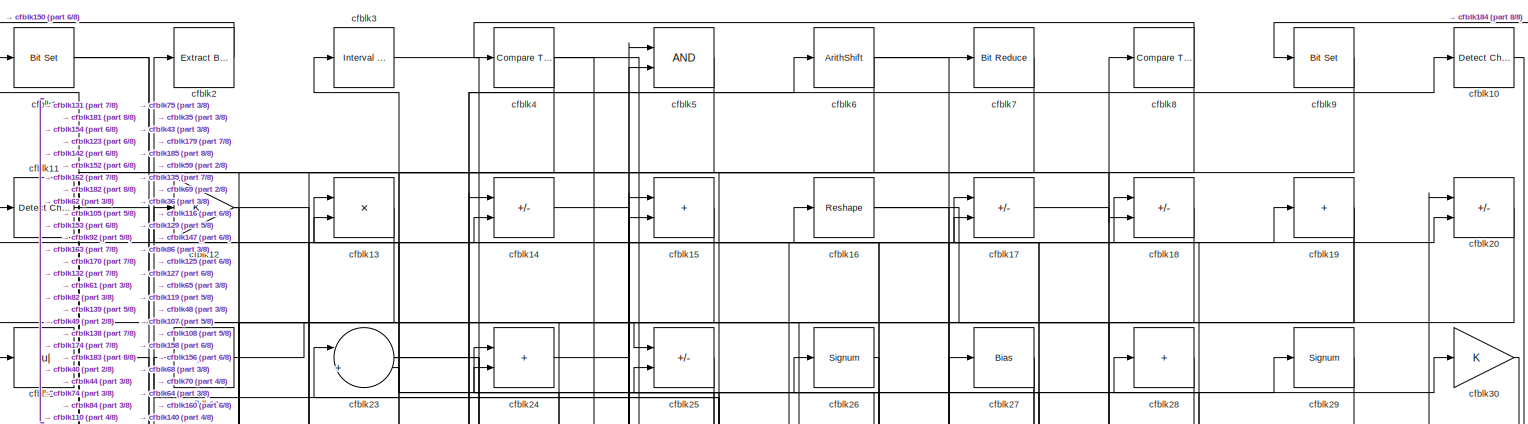
[diagram: root canvas - part 1/8, full width, top band]
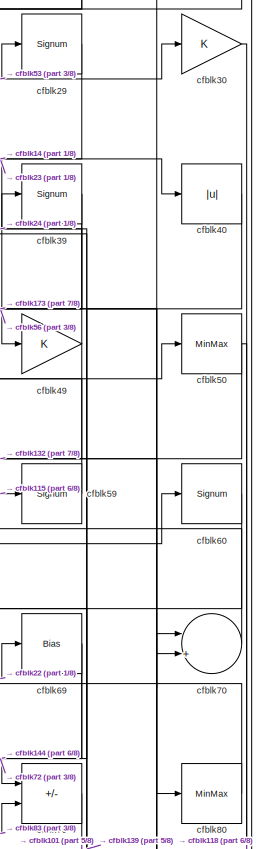
[diagram: root canvas - part 2/8, top right region]
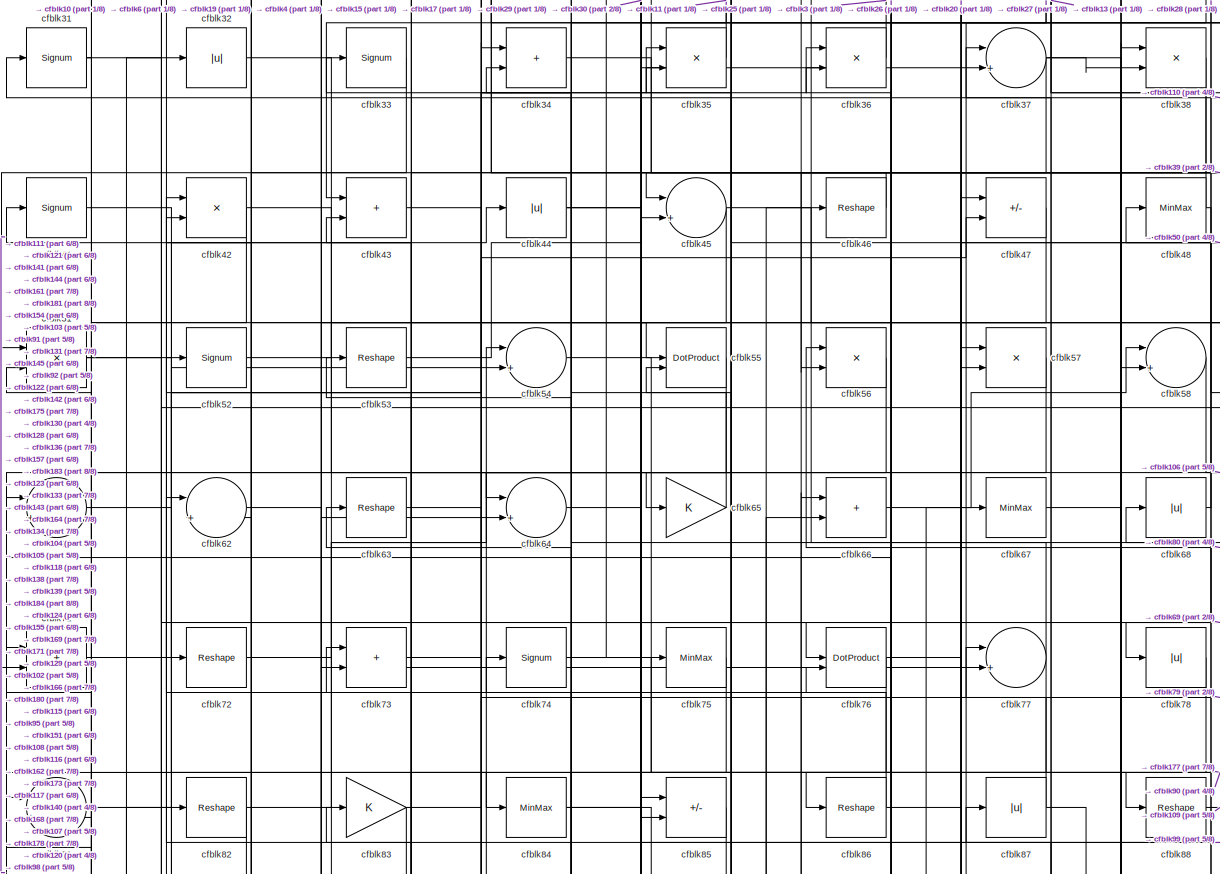
[diagram: root canvas - part 3/8, full width, top band]
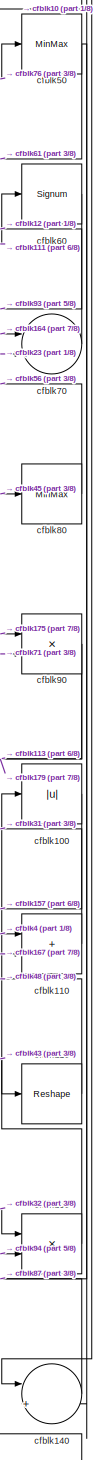
[diagram: root canvas - part 4/8, middle right region]
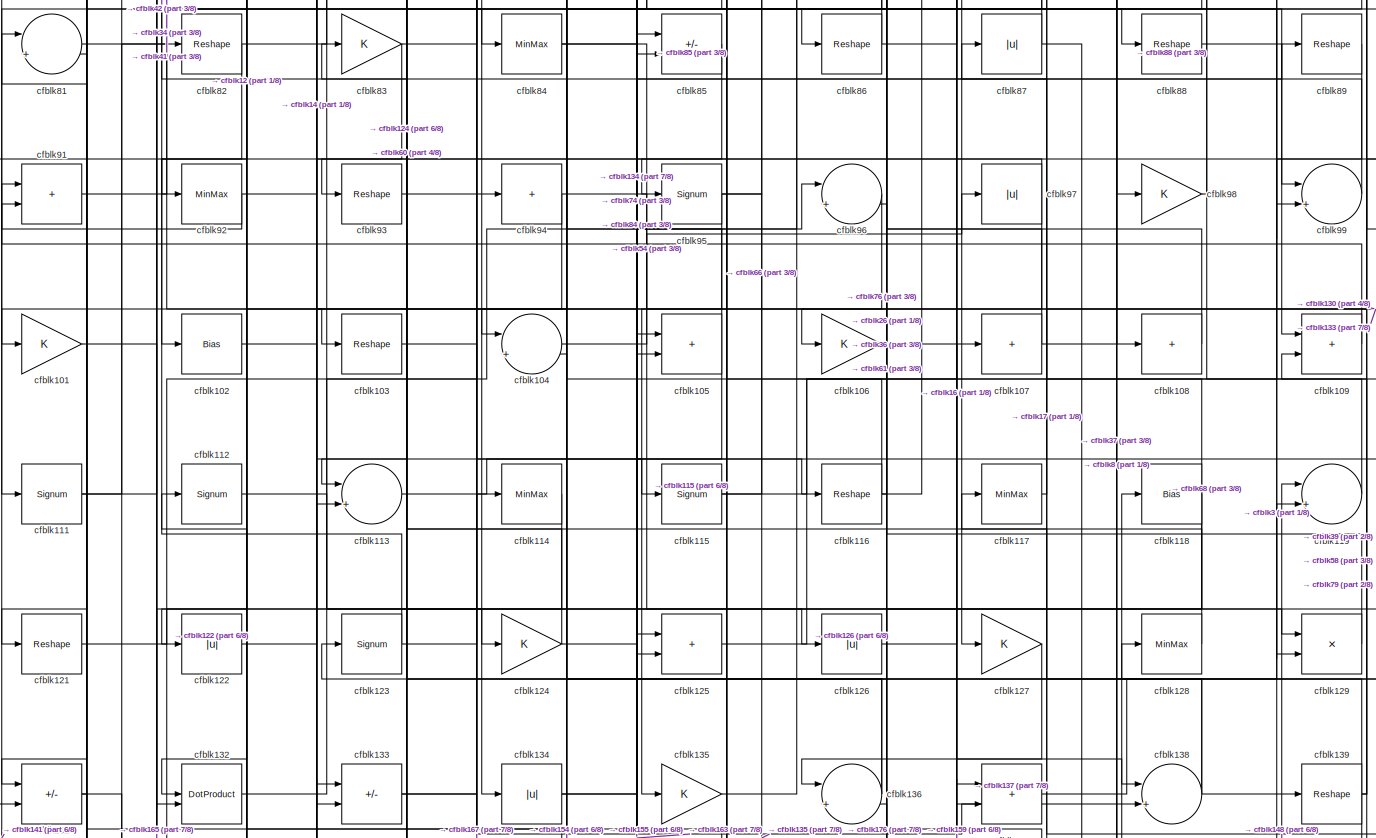
[diagram: root canvas - part 5/8, full width, middle band]
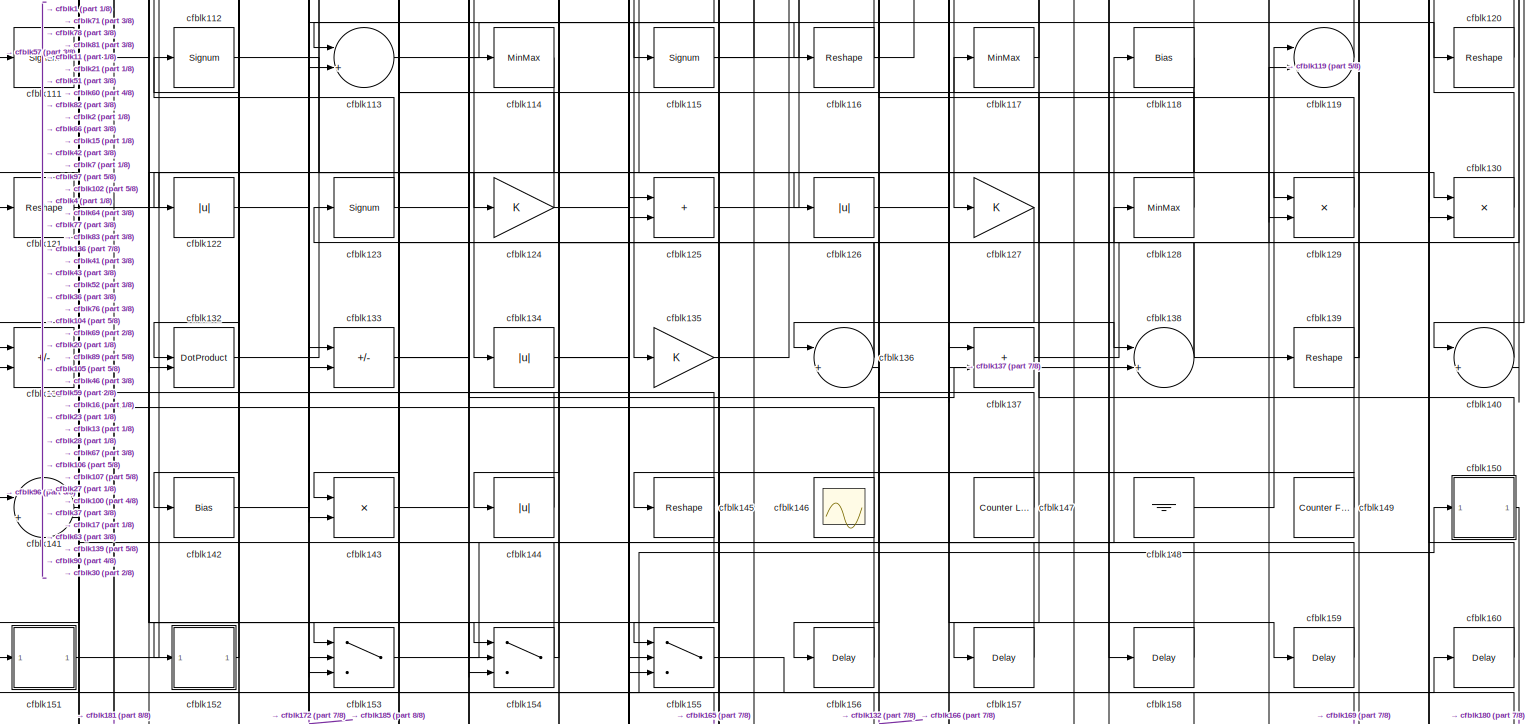
[diagram: root canvas - part 6/8, full width, bottom band]
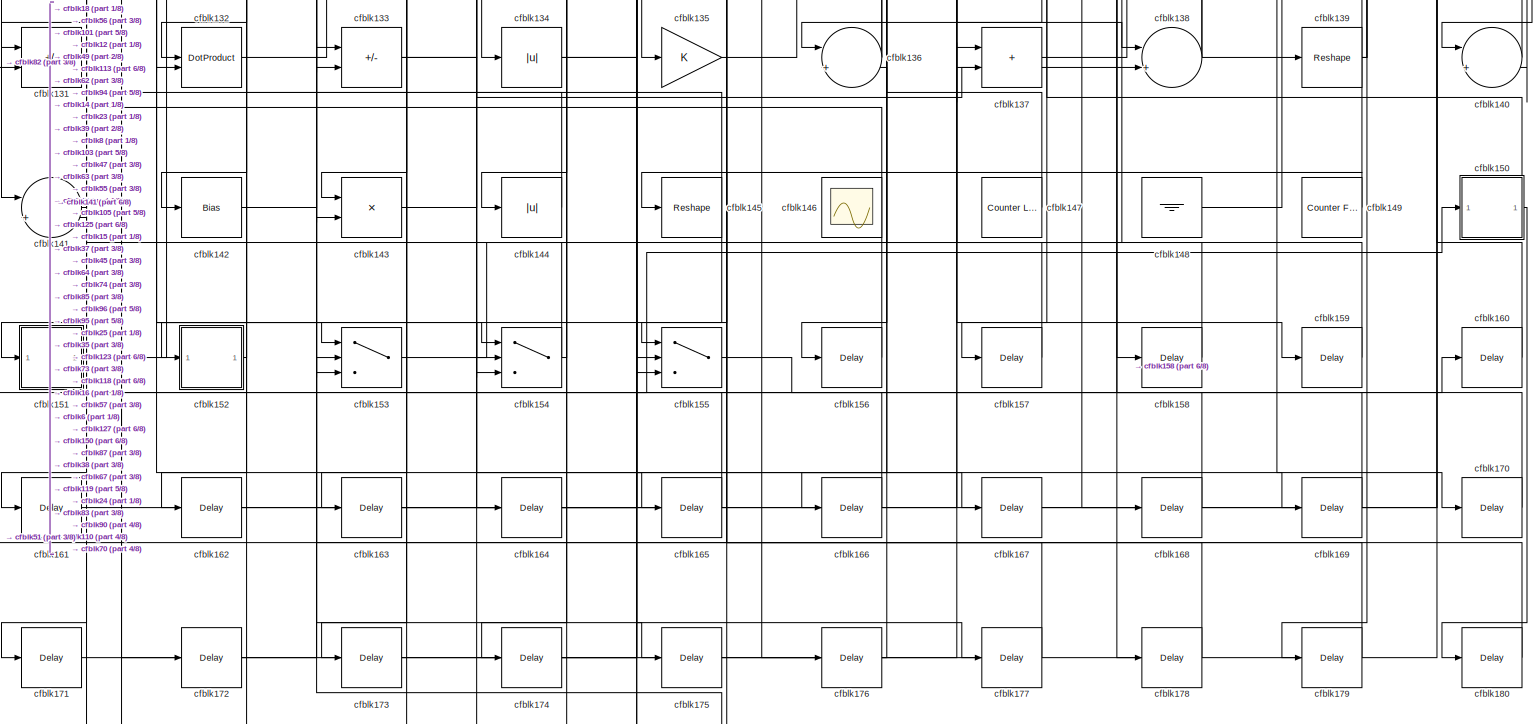
[diagram: root canvas - part 7/8, full width, bottom band]
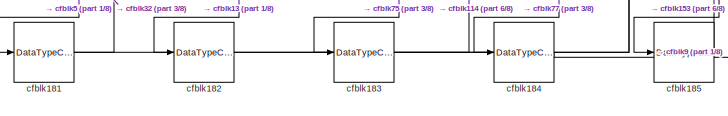
[diagram: root canvas - part 8/8, bottom left region]
MODEL slx_8d46d3509319
KIND model
CONFIG AbsTol = auto
CONFIG EnableMultiTasking = off
CONFIG FixedStep = auto
CONFIG MaxStep = auto
CONFIG MinStep = auto
CONFIG RelTol = 1e-3
CONFIG SampleTimeConstraint = Unconstrained
CONFIG SolverName = VariableStepAuto
CONFIG StartTime = 0.0
CONFIG StopTime = 10.0
BLOCK [Reference] cfblk1  REF=simulink/Logic and Bit
Operations/Bit Set
  LibrarySourceBlock = hdlsllib/Logic and Bit\nOperations/Bit Set
  SourceBlock = simulink/Logic and Bit\nOperations/Bit Set
  SourceType = Bit Set
BLOCK [Reference] cfblk10  REF=simulink/Logic and Bit
Operations/Detect
Change
  LibrarySourceBlock = hdlsllib/Logic and Bit\nOperations/Detect\nChange
  SourceBlock = simulink/Logic and Bit\nOperations/Detect\nChange
  SourceType = Detect Change
BLOCK [Abs] cfblk100
  SaturateOnIntegerOverflow = off
BLOCK [Gain] cfblk101
BLOCK [Bias] cfblk102
  Bias = 0.0
  SaturateOnIntegerOverflow = off
BLOCK [Reshape] cfblk103
BLOCK [Sum] cfblk104
  Inputs = |++
BLOCK [Sum] cfblk105
  IconShape = rectangular
BLOCK [Gain] cfblk106
BLOCK [Sum] cfblk107
  IconShape = rectangular
  Inputs = +
BLOCK [Sum] cfblk108
  IconShape = rectangular
  Inputs = +
BLOCK [Sum] cfblk109
  IconShape = rectangular
BLOCK [Reference] cfblk11  REF=simulink/Logic and Bit
Operations/Detect
Change
  LibrarySourceBlock = hdlsllib/Logic and Bit\nOperations/Detect\nChange
  SourceBlock = simulink/Logic and Bit\nOperations/Detect\nChange
  SourceType = Detect Change
BLOCK [Sum] cfblk110
  IconShape = rectangular
BLOCK [Signum] cfblk111
BLOCK [Signum] cfblk112
BLOCK [Sum] cfblk113
  Inputs = |++
BLOCK [MinMax] cfblk114
BLOCK [Signum] cfblk115
BLOCK [Reshape] cfblk116
BLOCK [MinMax] cfblk117
BLOCK [Bias] cfblk118
  Bias = 0.0
  SaturateOnIntegerOverflow = off
BLOCK [Sum] cfblk119
  Inputs = |++
BLOCK [Gain] cfblk12
BLOCK [Reshape] cfblk120
BLOCK [Reshape] cfblk121
BLOCK [Abs] cfblk122
  SaturateOnIntegerOverflow = off
BLOCK [Signum] cfblk123
BLOCK [Gain] cfblk124
BLOCK [Sum] cfblk125
  IconShape = rectangular
BLOCK [Abs] cfblk126
  SaturateOnIntegerOverflow = off
BLOCK [Gain] cfblk127
BLOCK [MinMax] cfblk128
BLOCK [Product] cfblk129
  Inputs = */
  RndMeth = Zero
  SaturateOnIntegerOverflow = on
BLOCK [Product] cfblk13
  Inputs = */
  RndMeth = Zero
  SaturateOnIntegerOverflow = on
BLOCK [Product] cfblk130
  Inputs = */
  RndMeth = Zero
  SaturateOnIntegerOverflow = on
BLOCK [Sum] cfblk131
  IconShape = rectangular
  Inputs = +-
BLOCK [DotProduct] cfblk132
  OutDataTypeStr = Inherit: Inherit via internal rule
BLOCK [Sum] cfblk133
  IconShape = rectangular
  Inputs = +-
BLOCK [Abs] cfblk134
  SaturateOnIntegerOverflow = off
BLOCK [Gain] cfblk135
BLOCK [Sum] cfblk136
  Inputs = |++
BLOCK [Sum] cfblk137
  IconShape = rectangular
BLOCK [Sum] cfblk138
  Inputs = |++
BLOCK [Reshape] cfblk139
BLOCK [Sum] cfblk14
  IconShape = rectangular
  Inputs = +-
BLOCK [Sum] cfblk140
  Inputs = |++
BLOCK [Sum] cfblk141
  Inputs = |++
BLOCK [Bias] cfblk142
  Bias = 0.0
  SaturateOnIntegerOverflow = off
BLOCK [Product] cfblk143
  Inputs = */
  RndMeth = Zero
  SaturateOnIntegerOverflow = on
BLOCK [Abs] cfblk144
  SaturateOnIntegerOverflow = off
BLOCK [Reshape] cfblk145
BLOCK [Scope] cfblk146
  Floating = on
  NumInputPorts = 1
  ScopeSpecificationString = Simulink.scopes.TimeScopeBlockCfg('CurrentConfiguration', extmgr.ConfigurationSet(extmgr.Configuration('Core','General UI',true,'FigureColor',[0.156862745098039 0.156862745098039 0.156862745098039]),extmgr.Configuration('Core','Source UI',true),extmgr.Configuration('Sources','WiredSimulink',true,'DataLoggingVariableName','ScopeData1','DataLoggingSaveFormat','StructureWithTime','DataLoggingLimitDat...<+2713ch>
BLOCK [Reference] cfblk147  REF=hdlsllib/Sources/Counter
Limited
  SourceBlock = hdlsllib/Sources/Counter\nLimited
  SourceType = Counter Limited
BLOCK [Ground] cfblk148
BLOCK [Reference] cfblk149  REF=hdlsllib/Sources/Counter
Free-Running
  SourceBlock = hdlsllib/Sources/Counter\nFree-Running
  SourceType = Counter Free-Running
BLOCK [Sum] cfblk15
  IconShape = rectangular
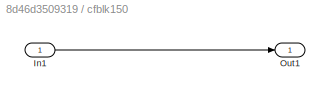
BLOCK [SubSystem] cfblk150
  LibrarySourceBlock = hdlsllib/Ports &\nSubsystems/Subsystem
BLOCK [Inport] cfblk150/In1
BLOCK [Outport] cfblk150/Out1
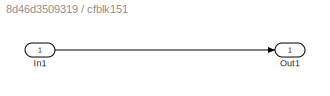
BLOCK [SubSystem] cfblk151
  LibrarySourceBlock = hdlsllib/Ports &\nSubsystems/Subsystem
BLOCK [Inport] cfblk151/In1
BLOCK [Outport] cfblk151/Out1
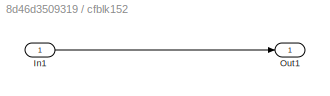
BLOCK [SubSystem] cfblk152
  LibrarySourceBlock = hdlsllib/Ports &\nSubsystems/Subsystem
BLOCK [Inport] cfblk152/In1
BLOCK [Outport] cfblk152/Out1
BLOCK [Switch] cfblk153
  InputSameDT = off
  SaturateOnIntegerOverflow = off
BLOCK [Switch] cfblk154
  InputSameDT = off
  SaturateOnIntegerOverflow = off
BLOCK [Switch] cfblk155
  InputSameDT = off
  SaturateOnIntegerOverflow = off
BLOCK [Delay] cfblk156
  InputPortMap = u0
  SampleTime = 1
BLOCK [Delay] cfblk157
  InputPortMap = u0
  SampleTime = 1
BLOCK [Delay] cfblk158
  InputPortMap = u0
  SampleTime = 1
BLOCK [Delay] cfblk159
  InputPortMap = u0
  SampleTime = 1
BLOCK [Reshape] cfblk16
BLOCK [Delay] cfblk160
  InputPortMap = u0
  SampleTime = 1
BLOCK [Delay] cfblk161
  InputPortMap = u0
  SampleTime = 1
BLOCK [Delay] cfblk162
  InputPortMap = u0
  SampleTime = 1
BLOCK [Delay] cfblk163
  InputPortMap = u0
  SampleTime = 1
BLOCK [Delay] cfblk164
  InputPortMap = u0
  SampleTime = 1
BLOCK [Delay] cfblk165
  InputPortMap = u0
  SampleTime = 1
BLOCK [Delay] cfblk166
  InputPortMap = u0
  SampleTime = 1
BLOCK [Delay] cfblk167
  InputPortMap = u0
  SampleTime = 1
BLOCK [Delay] cfblk168
  InputPortMap = u0
  SampleTime = 1
BLOCK [Delay] cfblk169
  InputPortMap = u0
  SampleTime = 1
BLOCK [Sum] cfblk17
  IconShape = rectangular
  Inputs = +-
BLOCK [Delay] cfblk170
  InputPortMap = u0
  SampleTime = 1
BLOCK [Delay] cfblk171
  InputPortMap = u0
  SampleTime = 1
BLOCK [Delay] cfblk172
  InputPortMap = u0
  SampleTime = 1
BLOCK [Delay] cfblk173
  InputPortMap = u0
  SampleTime = 1
BLOCK [Delay] cfblk174
  InputPortMap = u0
  SampleTime = 1
BLOCK [Delay] cfblk175
  InputPortMap = u0
  SampleTime = 1
BLOCK [Delay] cfblk176
  InputPortMap = u0
  SampleTime = 1
BLOCK [Delay] cfblk177
  InputPortMap = u0
  SampleTime = 1
BLOCK [Delay] cfblk178
  InputPortMap = u0
  SampleTime = 1
BLOCK [Delay] cfblk179
  InputPortMap = u0
  SampleTime = 1
BLOCK [Sum] cfblk18
  IconShape = rectangular
  Inputs = +-
BLOCK [Delay] cfblk180
  InputPortMap = u0
  SampleTime = 1
BLOCK [DataTypeConversion] cfblk181
  RndMeth = Floor
  SaturateOnIntegerOverflow = off
BLOCK [DataTypeConversion] cfblk182
  OutDataTypeStr = uint8
  RndMeth = Floor
  SaturateOnIntegerOverflow = off
BLOCK [DataTypeConversion] cfblk183
  OutDataTypeStr = uint8
  RndMeth = Floor
  SaturateOnIntegerOverflow = off
BLOCK [DataTypeConversion] cfblk184
  OutDataTypeStr = boolean
  RndMeth = Floor
  SaturateOnIntegerOverflow = off
BLOCK [DataTypeConversion] cfblk185
  OutDataTypeStr = uint8
  RndMeth = Floor
  SaturateOnIntegerOverflow = off
BLOCK [Sum] cfblk19
  IconShape = rectangular
  Inputs = +
BLOCK [Reference] cfblk2  REF=simulink/Logic and Bit
Operations/Extract Bits
  LibrarySourceBlock = hdlsllib/Logic and Bit\nOperations/Extract Bits
  SourceBlock = simulink/Logic and Bit\nOperations/Extract Bits
  SourceType = Extract Bits
BLOCK [Sum] cfblk20
  IconShape = rectangular
  Inputs = +-
BLOCK [Abs] cfblk21
  SaturateOnIntegerOverflow = off
BLOCK [Signum] cfblk22
BLOCK [Sum] cfblk23
  Inputs = |++
BLOCK [Sum] cfblk24
  IconShape = rectangular
BLOCK [Sum] cfblk25
  IconShape = rectangular
  Inputs = +-
BLOCK [Signum] cfblk26
BLOCK [Bias] cfblk27
  Bias = 0.0
  SaturateOnIntegerOverflow = off
BLOCK [Sum] cfblk28
  IconShape = rectangular
  Inputs = +
BLOCK [Signum] cfblk29
BLOCK [Reference] cfblk3  REF=hdlsllib/Logic and Bit
Operations/Interval Test
  SourceBlock = hdlsllib/Logic and Bit\nOperations/Interval Test
  SourceType = Interval Test
BLOCK [Gain] cfblk30
BLOCK [Signum] cfblk31
BLOCK [Abs] cfblk32
  SaturateOnIntegerOverflow = off
BLOCK [Signum] cfblk33
BLOCK [Sum] cfblk34
  IconShape = rectangular
BLOCK [Product] cfblk35
  Inputs = */
  RndMeth = Zero
  SaturateOnIntegerOverflow = on
BLOCK [Product] cfblk36
  Inputs = */
  RndMeth = Zero
  SaturateOnIntegerOverflow = on
BLOCK [Sum] cfblk37
  Inputs = |++
BLOCK [Product] cfblk38
  Inputs = */
  RndMeth = Zero
  SaturateOnIntegerOverflow = on
BLOCK [Signum] cfblk39
BLOCK [Reference] cfblk4  REF=hdlsllib/Logic and Bit
Operations/Compare
To Constant
  SourceBlock = hdlsllib/Logic and Bit\nOperations/Compare\nTo Constant
  SourceType = Compare To Constant
BLOCK [Abs] cfblk40
  SaturateOnIntegerOverflow = off
BLOCK [Signum] cfblk41
BLOCK [Product] cfblk42
  Inputs = */
  RndMeth = Zero
  SaturateOnIntegerOverflow = on
BLOCK [Sum] cfblk43
  IconShape = rectangular
BLOCK [Abs] cfblk44
  SaturateOnIntegerOverflow = off
BLOCK [Sum] cfblk45
  Inputs = |++
BLOCK [Reshape] cfblk46
BLOCK [Sum] cfblk47
  IconShape = rectangular
  Inputs = +-
BLOCK [MinMax] cfblk48
BLOCK [Gain] cfblk49
BLOCK [Logic] cfblk5
  AllPortsSameDT = off
  OutDataTypeStr = boolean
BLOCK [MinMax] cfblk50
BLOCK [Product] cfblk51
  Inputs = */
  RndMeth = Zero
  SaturateOnIntegerOverflow = on
BLOCK [Signum] cfblk52
BLOCK [Reshape] cfblk53
BLOCK [Sum] cfblk54
  Inputs = |++
BLOCK [DotProduct] cfblk55
  OutDataTypeStr = Inherit: Inherit via internal rule
BLOCK [Product] cfblk56
  Inputs = */
  RndMeth = Zero
  SaturateOnIntegerOverflow = on
BLOCK [Product] cfblk57
  Inputs = */
  RndMeth = Zero
  SaturateOnIntegerOverflow = on
BLOCK [Sum] cfblk58
  Inputs = |++
BLOCK [Signum] cfblk59
BLOCK [ArithShift] cfblk6
  BitShiftNumber = 8
  InputPortMap = u0
BLOCK [Signum] cfblk60
BLOCK [Sum] cfblk61
  Inputs = |++
BLOCK [Sum] cfblk62
  Inputs = |++
BLOCK [Reshape] cfblk63
BLOCK [Sum] cfblk64
  Inputs = |++
BLOCK [Gain] cfblk65
BLOCK [Sum] cfblk66
  IconShape = rectangular
BLOCK [MinMax] cfblk67
BLOCK [Abs] cfblk68
  SaturateOnIntegerOverflow = off
BLOCK [Bias] cfblk69
  Bias = 0.0
  SaturateOnIntegerOverflow = off
BLOCK [Reference] cfblk7  REF=hdlsllib/Logic and Bit
Operations/Bit Reduce
  SourceBlock = hdlsllib/Logic and Bit\nOperations/Bit Reduce
  SourceType = Bit Reduce
BLOCK [Sum] cfblk70
  Inputs = |++
BLOCK [Sum] cfblk71
  IconShape = rectangular
BLOCK [Reshape] cfblk72
BLOCK [Sum] cfblk73
  IconShape = rectangular
BLOCK [Signum] cfblk74
BLOCK [MinMax] cfblk75
BLOCK [DotProduct] cfblk76
  OutDataTypeStr = Inherit: Inherit via internal rule
BLOCK [Sum] cfblk77
  Inputs = |++
BLOCK [Abs] cfblk78
  SaturateOnIntegerOverflow = off
BLOCK [Sum] cfblk79
  IconShape = rectangular
  Inputs = +-
BLOCK [Reference] cfblk8  REF=hdlsllib/Logic and Bit
Operations/Compare
To Constant
  SourceBlock = hdlsllib/Logic and Bit\nOperations/Compare\nTo Constant
  SourceType = Compare To Constant
BLOCK [MinMax] cfblk80
BLOCK [Sum] cfblk81
  Inputs = |++
BLOCK [Reshape] cfblk82
BLOCK [Gain] cfblk83
BLOCK [MinMax] cfblk84
BLOCK [Sum] cfblk85
  IconShape = rectangular
  Inputs = +-
BLOCK [Reshape] cfblk86
BLOCK [Abs] cfblk87
  SaturateOnIntegerOverflow = off
BLOCK [Reshape] cfblk88
BLOCK [Reshape] cfblk89
BLOCK [Reference] cfblk9  REF=simulink/Logic and Bit
Operations/Bit Set
  LibrarySourceBlock = hdlsllib/Logic and Bit\nOperations/Bit Set
  SourceBlock = simulink/Logic and Bit\nOperations/Bit Set
  SourceType = Bit Set
BLOCK [Product] cfblk90
  Inputs = */
  RndMeth = Zero
  SaturateOnIntegerOverflow = on
BLOCK [Sum] cfblk91
  IconShape = rectangular
BLOCK [MinMax] cfblk92
BLOCK [Reshape] cfblk93
BLOCK [Sum] cfblk94
  IconShape = rectangular
  Inputs = +
BLOCK [Signum] cfblk95
BLOCK [Sum] cfblk96
  Inputs = |++
BLOCK [Abs] cfblk97
  SaturateOnIntegerOverflow = off
BLOCK [Gain] cfblk98
BLOCK [Sum] cfblk99
  Inputs = |++
LINE cfblk100:1 -> cfblk157:1
LINE cfblk101:1 -> cfblk165:1
LINE cfblk102:1 -> cfblk115:1
LINE cfblk103:1 -> cfblk167:1
LINE cfblk104:1 -> cfblk97:1
NET cfblk105:1 -> cfblk155:3, cfblk74:1
LINE cfblk106:1 -> cfblk159:1
NET cfblk107:1 -> cfblk61:1, cfblk8:1
LINE cfblk108:1 -> cfblk36:2
LINE cfblk109:1 -> cfblk91:1
LINE cfblk10:1 -> cfblk140:1
LINE cfblk110:1 -> cfblk31:1
NET cfblk111:1 -> cfblk60:1, cfblk82:1
LINE cfblk112:1 -> cfblk126:1
LINE cfblk113:1 -> cfblk116:1
LINE cfblk114:1 -> cfblk143:1
NET cfblk115:1 -> cfblk46:1, cfblk59:1
NET cfblk116:1 -> cfblk16:1, cfblk23:1, cfblk67:1
LINE cfblk117:1 -> cfblk37:1
NET cfblk118:1 -> cfblk132:2, cfblk166:1, cfblk63:1
LINE cfblk119:1 -> cfblk17:1
LINE cfblk11:1 -> cfblk154:1
LINE cfblk120:1 -> cfblk48:1
LINE cfblk121:1 -> cfblk124:1
LINE cfblk122:1 -> cfblk77:2
NET cfblk123:1 -> cfblk2:1, cfblk76:2
NET cfblk124:1 -> cfblk52:1, cfblk89:1
LINE cfblk125:1 -> cfblk27:1
LINE cfblk126:1 -> cfblk107:1
LINE cfblk127:1 -> cfblk136:1
LINE cfblk128:1 -> cfblk41:1
LINE cfblk129:1 -> cfblk26:1
NET cfblk12:1 -> cfblk105:2, cfblk162:1
LINE cfblk130:1 -> cfblk100:1
NET cfblk131:1 -> cfblk171:1, cfblk172:1
LINE cfblk132:1 -> cfblk14:1
NET cfblk133:1 -> cfblk137:2, cfblk47:2
NET cfblk134:1 -> cfblk37:2, cfblk96:1
LINE cfblk135:1 -> cfblk19:1
NET cfblk136:1 -> cfblk123:1, cfblk73:1
LINE cfblk137:1 -> cfblk119:2
NET cfblk138:1 -> cfblk170:1, cfblk24:1, cfblk83:1
NET cfblk139:1 -> cfblk109:2, cfblk155:1, cfblk34:2, cfblk39:1
LINE cfblk13:1 -> cfblk182:1
LINE cfblk140:1 -> cfblk87:1
LINE cfblk141:1 -> cfblk51:2
LINE cfblk142:1 -> cfblk64:2
LINE cfblk143:1 -> cfblk36:1
LINE cfblk144:1 -> cfblk81:1
NET cfblk145:1 -> cfblk154:3, cfblk42:2
LINE cfblk147:1 -> cfblk13:1
LINE cfblk148:1 -> cfblk119:1
LINE cfblk149:1 -> cfblk145:1
LINE cfblk14:1 -> cfblk40:1
LINE cfblk150/In1:1 -> cfblk150/Out1:1
NET cfblk150:1 -> cfblk117:1, cfblk180:1
LINE cfblk151/In1:1 -> cfblk151/Out1:1
LINE cfblk151:1 -> cfblk66:1
LINE cfblk152/In1:1 -> cfblk152/Out1:1
LINE cfblk152:1 -> cfblk112:1
LINE cfblk153:1 -> cfblk128:1
NET cfblk154:1 -> cfblk104:2, cfblk71:1
LINE cfblk155:1 -> cfblk160:1
LINE cfblk156:1 -> cfblk1:1
LINE cfblk157:1 -> cfblk43:2
LINE cfblk158:1 -> cfblk137:1
LINE cfblk159:1 -> cfblk96:2
LINE cfblk15:1 -> cfblk152:1
LINE cfblk160:1 -> cfblk20:1
LINE cfblk161:1 -> cfblk85:1
LINE cfblk162:1 -> cfblk57:1
LINE cfblk163:1 -> cfblk105:1
LINE cfblk164:1 -> cfblk70:1
LINE cfblk165:1 -> cfblk141:2
LINE cfblk166:1 -> cfblk35:2
LINE cfblk167:1 -> cfblk110:2
LINE cfblk168:1 -> cfblk38:1
LINE cfblk169:1 -> cfblk125:1
NET cfblk16:1 -> cfblk108:1, cfblk138:2
LINE cfblk170:1 -> cfblk23:2
LINE cfblk171:1 -> cfblk45:2
LINE cfblk172:1 -> cfblk113:2
LINE cfblk173:1 -> cfblk47:1
LINE cfblk174:1 -> cfblk15:2
LINE cfblk175:1 -> cfblk90:1
LINE cfblk176:1 -> cfblk136:2
LINE cfblk177:1 -> cfblk133:1
LINE cfblk178:1 -> cfblk51:1
LINE cfblk179:1 -> cfblk25:2
LINE cfblk17:1 -> cfblk158:1
LINE cfblk180:1 -> cfblk55:2
NET cfblk181:1 -> cfblk114:1, cfblk32:1
LINE cfblk182:1 -> cfblk5:1
LINE cfblk183:1 -> cfblk5:2
LINE cfblk184:1 -> cfblk9:1
LINE cfblk185:1 -> cfblk153:2
LINE cfblk18:1 -> cfblk131:1
NET cfblk19:1 -> cfblk174:1, cfblk62:2
NET cfblk1:1 -> cfblk18:2, cfblk25:1
LINE cfblk20:1 -> cfblk125:2
LINE cfblk21:1 -> cfblk153:1
LINE cfblk22:1 -> cfblk69:1
NET cfblk23:1 -> cfblk49:1, cfblk70:2
LINE cfblk24:1 -> cfblk18:1
LINE cfblk25:1 -> cfblk43:1
LINE cfblk26:1 -> cfblk86:1
NET cfblk27:1 -> cfblk127:1, cfblk65:1
LINE cfblk28:1 -> cfblk156:1
LINE cfblk29:1 -> cfblk64:1
LINE cfblk2:1 -> cfblk150:1
LINE cfblk30:1 -> cfblk118:1
NET cfblk31:1 -> cfblk76:1, cfblk81:2
LINE cfblk32:1 -> cfblk130:1
LINE cfblk33:1 -> cfblk71:2
LINE cfblk34:1 -> cfblk58:2
LINE cfblk35:1 -> cfblk11:1
LINE cfblk36:1 -> cfblk3:1
NET cfblk37:1 -> cfblk38:2, cfblk92:1, cfblk98:1
LINE cfblk38:1 -> cfblk57:2
NET cfblk39:1 -> cfblk173:1, cfblk56:2
LINE cfblk3:1 -> cfblk139:1
LINE cfblk40:1 -> cfblk79:1
LINE cfblk41:1 -> cfblk103:1
NET cfblk42:1 -> cfblk151:1, cfblk155:2
LINE cfblk43:1 -> cfblk120:1
NET cfblk44:1 -> cfblk17:2, cfblk88:1
NET cfblk45:1 -> cfblk73:2, cfblk80:1
LINE cfblk46:1 -> cfblk45:1
LINE cfblk47:1 -> cfblk85:2
NET cfblk48:1 -> cfblk13:2, cfblk78:1
NET cfblk49:1 -> cfblk132:1, cfblk24:2
NET cfblk4:1 -> cfblk110:1, cfblk153:3, cfblk75:1
NET cfblk50:1 -> cfblk140:2, cfblk61:2
NET cfblk51:1 -> cfblk154:2, cfblk84:1
LINE cfblk52:1 -> cfblk55:1
LINE cfblk53:1 -> cfblk30:1
LINE cfblk54:1 -> cfblk99:1
LINE cfblk55:1 -> cfblk134:1
LINE cfblk56:1 -> cfblk161:1
LINE cfblk57:1 -> cfblk111:1
LINE cfblk58:1 -> cfblk106:1
LINE cfblk59:1 -> cfblk22:1
LINE cfblk5:1 -> cfblk181:1
LINE cfblk60:1 -> cfblk93:1
LINE cfblk61:1 -> cfblk6:1
LINE cfblk62:1 -> cfblk175:1
LINE cfblk63:1 -> cfblk164:1
LINE cfblk64:1 -> cfblk169:1
LINE cfblk65:1 -> cfblk33:1
LINE cfblk66:1 -> cfblk58:1
LINE cfblk67:1 -> cfblk178:1
LINE cfblk68:1 -> cfblk28:1
NET cfblk69:1 -> cfblk144:1, cfblk72:1
NET cfblk6:1 -> cfblk138:1, cfblk21:1, cfblk7:1
LINE cfblk70:1 -> cfblk12:1
NET cfblk71:1 -> cfblk54:2, cfblk90:2
LINE cfblk72:1 -> cfblk54:1
LINE cfblk73:1 -> cfblk35:1
NET cfblk74:1 -> cfblk15:1, cfblk177:1, cfblk99:2
LINE cfblk75:1 -> cfblk183:1
NET cfblk76:1 -> cfblk104:1, cfblk50:1
NET cfblk77:1 -> cfblk184:1, cfblk53:1
LINE cfblk78:1 -> cfblk121:1
LINE cfblk79:1 -> cfblk101:1
LINE cfblk7:1 -> cfblk142:1
LINE cfblk80:1 -> cfblk56:1
LINE cfblk81:1 -> cfblk44:1
NET cfblk82:1 -> cfblk10:1, cfblk131:2
NET cfblk83:1 -> cfblk143:2, cfblk79:2
NET cfblk84:1 -> cfblk129:1, cfblk29:1
LINE cfblk85:1 -> cfblk102:1
NET cfblk86:1 -> cfblk20:2, cfblk62:1
NET cfblk87:1 -> cfblk168:1, cfblk77:1
LINE cfblk88:1 -> cfblk109:1
LINE cfblk89:1 -> cfblk129:2
NET cfblk8:1 -> cfblk163:1, cfblk4:1
NET cfblk90:1 -> cfblk113:1, cfblk179:1
LINE cfblk91:1 -> cfblk34:1
NET cfblk92:1 -> cfblk14:2, cfblk91:2
LINE cfblk93:1 -> cfblk94:1
NET cfblk94:1 -> cfblk130:2, cfblk133:2
NET cfblk95:1 -> cfblk135:1, cfblk176:1, cfblk66:2
LINE cfblk96:1 -> cfblk141:1
NET cfblk97:1 -> cfblk122:1, cfblk95:1
LINE cfblk98:1 -> cfblk68:1
LINE cfblk99:1 -> cfblk42:1
LINE cfblk9:1 -> cfblk185:1
note: NET lines group one-source signal fan-out (src -> all destinations, sorted); 1:1 wires keep LINE
